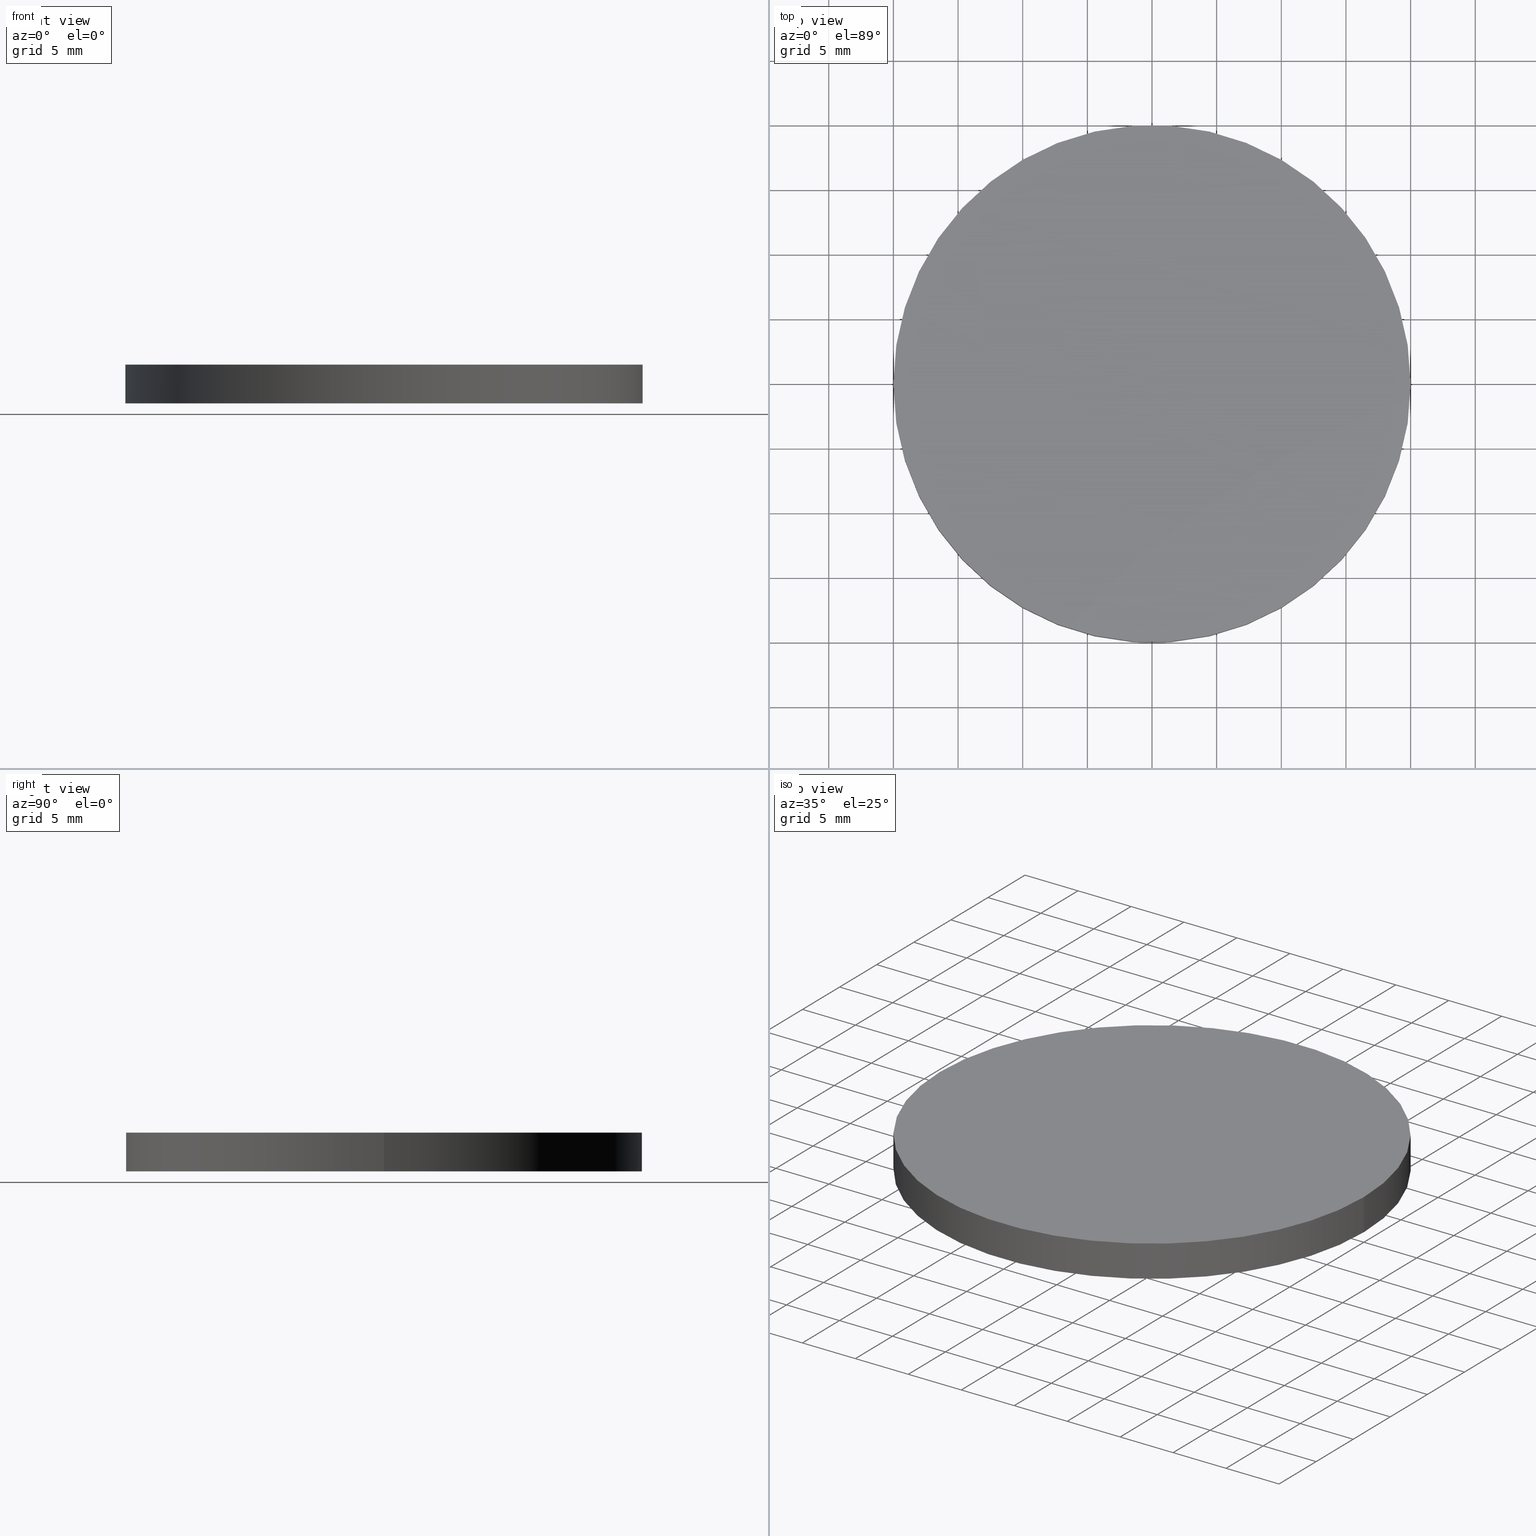
[diagram: canonical four-view strip — front | top / right | iso, engineering-drawing reading convention]
A machine part, canonical four-view strip (front | top / right | iso — engineering-drawing reading convention). The complete STEP part file that produces these views, byte-faithful:
ISO-10303-21;
HEADER;
FILE_DESCRIPTION (( 'STEP AP214' ),
    '1' );
FILE_NAME ('190130.STEP',
    '2019-07-17T06:52:16',
    ( 'user' ),
    ( '΢���й�' ),
    'SwSTEP 2.0',
    'SolidWorks 2016',
    '' );
FILE_SCHEMA (( 'AUTOMOTIVE_DESIGN' ));
ENDSEC;

DATA;
#1 = APPLICATION_PROTOCOL_DEFINITION ( 'draft international standard', 'automotive_design', 1998, #81 ) ;
#2 = COLOUR_RGB ( '',1.000000000000000000, 1.000000000000000000, 1.000000000000000000 ) ;
#3 = UNCERTAINTY_MEASURE_WITH_UNIT (LENGTH_MEASURE( 1.000000000000000100E-005 ), #75, 'distance_accuracy_value', 'NONE');
#4 = ORIENTED_EDGE ( 'NONE', *, *, #43, .F. ) ;
#5 =( NAMED_UNIT ( * ) SI_UNIT ( $, .STERADIAN. ) SOLID_ANGLE_UNIT ( ) );
#6 = APPLICATION_PROTOCOL_DEFINITION ( 'draft international standard', 'automotive_design', 1998, #134 ) ;
#7 = CYLINDRICAL_SURFACE ( 'NONE', #116, 20.00000000000000000 ) ;
#8 = SURFACE_STYLE_USAGE ( .BOTH. , #88 ) ;
#9 = FACE_OUTER_BOUND ( 'NONE', #112, .T. ) ;
#10 = PRODUCT_CONTEXT ( 'NONE', #134, 'mechanical' ) ;
#11 = LINE ( 'NONE', #28, #67 ) ;
#12 = VERTEX_POINT ( 'NONE', #89 ) ;
#13 = AXIS2_PLACEMENT_3D ( 'NONE', #63, #127, #54 ) ;
#14 = FILL_AREA_STYLE_COLOUR ( '', #2 ) ;
#15 = FACE_OUTER_BOUND ( 'NONE', #76, .T. ) ;
#16 = DIRECTION ( 'NONE',  ( -1.000000000000000000, 0.0000000000000000000, 0.0000000000000000000 ) ) ;
#17 = FILL_AREA_STYLE ('',( #14 ) ) ;
#18 = CARTESIAN_POINT ( 'NONE',  ( 20.00000000000000000, 2.449293598294706500E-015, 3.000000000000000000 ) ) ;
#19 = SURFACE_SIDE_STYLE ('',( #130 ) ) ;
#20 = ORIENTED_EDGE ( 'NONE', *, *, #84, .F. ) ;
#21 = FILL_AREA_STYLE ('',( #77 ) ) ;
#22 =( NAMED_UNIT ( * ) PLANE_ANGLE_UNIT ( ) SI_UNIT ( $, .RADIAN. ) );
#23 = AXIS2_PLACEMENT_3D ( 'NONE', #49, #61, #41 ) ;
#24 = VERTEX_POINT ( 'NONE', #18 ) ;
#25 =( LENGTH_UNIT ( ) NAMED_UNIT ( * ) SI_UNIT ( .MILLI., .METRE. ) );
#26 = AXIS2_PLACEMENT_3D ( 'NONE', #72, #51, #124 ) ;
#27 = CARTESIAN_POINT ( 'NONE',  ( 0.0000000000000000000, 0.0000000000000000000, 0.0000000000000000000 ) ) ;
#28 = CARTESIAN_POINT ( 'NONE',  ( 20.00000000000000000, 2.449293598294706500E-015, 3.000000000000000000 ) ) ;
#29 = PRODUCT_DEFINITION_SHAPE ( 'NONE', 'NONE',  #87 ) ;
#30 = SURFACE_STYLE_FILL_AREA ( #21 ) ;
#31 = UNCERTAINTY_MEASURE_WITH_UNIT (LENGTH_MEASURE( 1.000000000000000100E-005 ), #105, 'distance_accuracy_value', 'NONE');
#32 = PLANE ( 'NONE',  #45 ) ;
#33 = ORIENTED_EDGE ( 'NONE', *, *, #37, .T. ) ;
#34 =( NAMED_UNIT ( * ) SI_UNIT ( $, .STERADIAN. ) SOLID_ANGLE_UNIT ( ) );
#35 = AXIS2_PLACEMENT_3D ( 'NONE', #27, #70, #39 ) ;
#36 = AXIS2_PLACEMENT_3D ( 'NONE', #60, #125, #137 ) ;
#37 = EDGE_CURVE ( 'NONE', #12, #24, #82, .T. ) ;
#38 = STYLED_ITEM ( 'NONE', ( #50 ), #129 ) ;
#39 = DIRECTION ( 'NONE',  ( 1.000000000000000000, 0.0000000000000000000, -0.0000000000000000000 ) ) ;
#40 = ORIENTED_EDGE ( 'NONE', *, *, #136, .T. ) ;
#41 = DIRECTION ( 'NONE',  ( -1.000000000000000000, 0.0000000000000000000, 0.0000000000000000000 ) ) ;
#42 = DIRECTION ( 'NONE',  ( 0.0000000000000000000, 0.0000000000000000000, 1.000000000000000000 ) ) ;
#43 = EDGE_CURVE ( 'NONE', #24, #12, #53, .T. ) ;
#44 = ADVANCED_FACE ( 'NONE', ( #94 ), #7, .T. ) ;
#45 = AXIS2_PLACEMENT_3D ( 'NONE', #140, #42, #113 ) ;
#46 = VERTEX_POINT ( 'NONE', #99 ) ;
#47 = EDGE_LOOP ( 'NONE', ( #4, #85, #56, #59 ) ) ;
#48 = ADVANCED_FACE ( 'NONE', ( #9 ), #96, .F. ) ;
#49 = CARTESIAN_POINT ( 'NONE',  ( 0.0000000000000000000, 0.0000000000000000000, 3.000000000000000000 ) ) ;
#50 = PRESENTATION_STYLE_ASSIGNMENT (( #8 ) ) ;
#51 = DIRECTION ( 'NONE',  ( 0.0000000000000000000, 0.0000000000000000000, 1.000000000000000000 ) ) ;
#52 = PRESENTATION_LAYER_ASSIGNMENT (  '', '', ( #38 ) ) ;
#53 = CIRCLE ( 'NONE', #26, 20.00000000000000000 ) ;
#54 = DIRECTION ( 'NONE',  ( 1.000000000000000000, 0.0000000000000000000, 0.0000000000000000000 ) ) ;
#55 = PRESENTATION_STYLE_ASSIGNMENT (( #135 ) ) ;
#56 = ORIENTED_EDGE ( 'NONE', *, *, #118, .T. ) ;
#57 = MECHANICAL_DESIGN_GEOMETRIC_PRESENTATION_REPRESENTATION (  '', ( #38 ), #68 ) ;
#58 = CARTESIAN_POINT ( 'NONE',  ( 0.0000000000000000000, 0.0000000000000000000, 3.000000000000000000 ) ) ;
#59 = ORIENTED_EDGE ( 'NONE', *, *, #136, .F. ) ;
#60 = CARTESIAN_POINT ( 'NONE',  ( 0.0000000000000000000, 0.0000000000000000000, 3.000000000000000000 ) ) ;
#61 = DIRECTION ( 'NONE',  ( -0.0000000000000000000, -0.0000000000000000000, -1.000000000000000000 ) ) ;
#62 =( NAMED_UNIT ( * ) SI_UNIT ( $, .STERADIAN. ) SOLID_ANGLE_UNIT ( ) );
#63 = CARTESIAN_POINT ( 'NONE',  ( 0.0000000000000000000, 0.0000000000000000000, 0.0000000000000000000 ) ) ;
#64 = ORIENTED_EDGE ( 'NONE', *, *, #37, .F. ) ;
#65 = DIRECTION ( 'NONE',  ( 1.000000000000000000, 0.0000000000000000000, 0.0000000000000000000 ) ) ;
#66 = PRODUCT ( '190130', '190130', '', ( #10 ) ) ;
#67 = VECTOR ( 'NONE', #104, 1000.000000000000000 ) ;
#68 =( GEOMETRIC_REPRESENTATION_CONTEXT ( 3 ) GLOBAL_UNCERTAINTY_ASSIGNED_CONTEXT ( ( #3 ) ) GLOBAL_UNIT_ASSIGNED_CONTEXT ( ( #75, #138, #62 ) ) REPRESENTATION_CONTEXT ( 'NONE', 'WORKASPACE' ) );
#69 =( NAMED_UNIT ( * ) PLANE_ANGLE_UNIT ( ) SI_UNIT ( $, .RADIAN. ) );
#70 = DIRECTION ( 'NONE',  ( 0.0000000000000000000, 0.0000000000000000000, 1.000000000000000000 ) ) ;
#71 = LINE ( 'NONE', #119, #80 ) ;
#72 = CARTESIAN_POINT ( 'NONE',  ( 0.0000000000000000000, 0.0000000000000000000, 3.000000000000000000 ) ) ;
#73 =( GEOMETRIC_REPRESENTATION_CONTEXT ( 3 ) GLOBAL_UNCERTAINTY_ASSIGNED_CONTEXT ( ( #31 ) ) GLOBAL_UNIT_ASSIGNED_CONTEXT ( ( #105, #69, #5 ) ) REPRESENTATION_CONTEXT ( 'NONE', 'WORKASPACE' ) );
#74 = DIRECTION ( 'NONE',  ( -0.0000000000000000000, -0.0000000000000000000, -1.000000000000000000 ) ) ;
#75 =( LENGTH_UNIT ( ) NAMED_UNIT ( * ) SI_UNIT ( .MILLI., .METRE. ) );
#76 = EDGE_LOOP ( 'NONE', ( #133, #64, #40, #122 ) ) ;
#77 = FILL_AREA_STYLE_COLOUR ( '', #132 ) ;
#78 = SHAPE_DEFINITION_REPRESENTATION ( #29, #79 ) ;
#79 = ADVANCED_BREP_SHAPE_REPRESENTATION ( '190130', ( #129, #83 ), #73 ) ;
#80 = VECTOR ( 'NONE', #114, 1000.000000000000000 ) ;
#81 = APPLICATION_CONTEXT ( 'automotive_design' ) ;
#82 = CIRCLE ( 'NONE', #36, 20.00000000000000000 ) ;
#83 = AXIS2_PLACEMENT_3D ( 'NONE', #131, #90, #65 ) ;
#84 = EDGE_CURVE ( 'NONE', #107, #46, #98, .T. ) ;
#85 = ORIENTED_EDGE ( 'NONE', *, *, #108, .T. ) ;
#86 = CARTESIAN_POINT ( 'NONE',  ( 0.0000000000000000000, 0.0000000000000000000, 0.0000000000000000000 ) ) ;
#87 = PRODUCT_DEFINITION ( 'δ֪', '', #97, #139 ) ;
#88 = SURFACE_SIDE_STYLE ('',( #30 ) ) ;
#89 = CARTESIAN_POINT ( 'NONE',  ( -20.00000000000000000, 0.0000000000000000000, 3.000000000000000000 ) ) ;
#90 = DIRECTION ( 'NONE',  ( 0.0000000000000000000, 0.0000000000000000000, 1.000000000000000000 ) ) ;
#91 = ORIENTED_EDGE ( 'NONE', *, *, #118, .F. ) ;
#92 = STYLED_ITEM ( 'NONE', ( #55 ), #79 ) ;
#93 = CIRCLE ( 'NONE', #13, 20.00000000000000000 ) ;
#94 = FACE_OUTER_BOUND ( 'NONE', #47, .T. ) ;
#95 = CYLINDRICAL_SURFACE ( 'NONE', #23, 20.00000000000000000 ) ;
#96 = PLANE ( 'NONE',  #35 ) ;
#97 = PRODUCT_DEFINITION_FORMATION_WITH_SPECIFIED_SOURCE ( '�κ�', '', #66, .NOT_KNOWN. ) ;
#98 = CIRCLE ( 'NONE', #111, 20.00000000000000000 ) ;
#99 = CARTESIAN_POINT ( 'NONE',  ( 20.00000000000000000, 2.449293598294706500E-015, 0.0000000000000000000 ) ) ;
#100 = DIRECTION ( 'NONE',  ( 1.000000000000000000, 0.0000000000000000000, 0.0000000000000000000 ) ) ;
#101 = ADVANCED_FACE ( 'NONE', ( #15 ), #95, .T. ) ;
#102 = PRESENTATION_LAYER_ASSIGNMENT (  '', '', ( #92 ) ) ;
#103 = UNCERTAINTY_MEASURE_WITH_UNIT (LENGTH_MEASURE( 1.000000000000000100E-005 ), #25, 'distance_accuracy_value', 'NONE');
#104 = DIRECTION ( 'NONE',  ( -0.0000000000000000000, -0.0000000000000000000, -1.000000000000000000 ) ) ;
#105 =( LENGTH_UNIT ( ) NAMED_UNIT ( * ) SI_UNIT ( .MILLI., .METRE. ) );
#106 = PRODUCT_RELATED_PRODUCT_CATEGORY ( 'part', '', ( #66 ) ) ;
#107 = VERTEX_POINT ( 'NONE', #123 ) ;
#108 = EDGE_CURVE ( 'NONE', #24, #46, #11, .T. ) ;
#109 = MECHANICAL_DESIGN_GEOMETRIC_PRESENTATION_REPRESENTATION (  '', ( #92 ), #115 ) ;
#110 = ORIENTED_EDGE ( 'NONE', *, *, #43, .T. ) ;
#111 = AXIS2_PLACEMENT_3D ( 'NONE', #86, #120, #100 ) ;
#112 = EDGE_LOOP ( 'NONE', ( #20, #91 ) ) ;
#113 = DIRECTION ( 'NONE',  ( 1.000000000000000000, 0.0000000000000000000, -0.0000000000000000000 ) ) ;
#114 = DIRECTION ( 'NONE',  ( -0.0000000000000000000, -0.0000000000000000000, -1.000000000000000000 ) ) ;
#115 =( GEOMETRIC_REPRESENTATION_CONTEXT ( 3 ) GLOBAL_UNCERTAINTY_ASSIGNED_CONTEXT ( ( #103 ) ) GLOBAL_UNIT_ASSIGNED_CONTEXT ( ( #25, #22, #34 ) ) REPRESENTATION_CONTEXT ( 'NONE', 'WORKASPACE' ) );
#116 = AXIS2_PLACEMENT_3D ( 'NONE', #58, #74, #16 ) ;
#117 = FACE_OUTER_BOUND ( 'NONE', #126, .T. ) ;
#118 = EDGE_CURVE ( 'NONE', #46, #107, #93, .T. ) ;
#119 = CARTESIAN_POINT ( 'NONE',  ( -20.00000000000000000, 0.0000000000000000000, 3.000000000000000000 ) ) ;
#120 = DIRECTION ( 'NONE',  ( 0.0000000000000000000, 0.0000000000000000000, 1.000000000000000000 ) ) ;
#121 = CLOSED_SHELL ( 'NONE', ( #44, #101, #128, #48 ) ) ;
#122 = ORIENTED_EDGE ( 'NONE', *, *, #84, .T. ) ;
#123 = CARTESIAN_POINT ( 'NONE',  ( -20.00000000000000000, 0.0000000000000000000, 0.0000000000000000000 ) ) ;
#124 = DIRECTION ( 'NONE',  ( 1.000000000000000000, 0.0000000000000000000, 0.0000000000000000000 ) ) ;
#125 = DIRECTION ( 'NONE',  ( 0.0000000000000000000, 0.0000000000000000000, 1.000000000000000000 ) ) ;
#126 = EDGE_LOOP ( 'NONE', ( #33, #110 ) ) ;
#127 = DIRECTION ( 'NONE',  ( 0.0000000000000000000, 0.0000000000000000000, 1.000000000000000000 ) ) ;
#128 = ADVANCED_FACE ( 'NONE', ( #117 ), #32, .T. ) ;
#129 = MANIFOLD_SOLID_BREP ( '͹̨-����1', #121 ) ;
#130 = SURFACE_STYLE_FILL_AREA ( #17 ) ;
#131 = CARTESIAN_POINT ( 'NONE',  ( 0.0000000000000000000, 0.0000000000000000000, 0.0000000000000000000 ) ) ;
#132 = COLOUR_RGB ( '',1.000000000000000000, 1.000000000000000000, 1.000000000000000000 ) ;
#133 = ORIENTED_EDGE ( 'NONE', *, *, #108, .F. ) ;
#134 = APPLICATION_CONTEXT ( 'automotive_design' ) ;
#135 = SURFACE_STYLE_USAGE ( .BOTH. , #19 ) ;
#136 = EDGE_CURVE ( 'NONE', #12, #107, #71, .T. ) ;
#137 = DIRECTION ( 'NONE',  ( 1.000000000000000000, 0.0000000000000000000, 0.0000000000000000000 ) ) ;
#138 =( NAMED_UNIT ( * ) PLANE_ANGLE_UNIT ( ) SI_UNIT ( $, .RADIAN. ) );
#139 = PRODUCT_DEFINITION_CONTEXT ( 'detailed design', #81, 'design' ) ;
#140 = CARTESIAN_POINT ( 'NONE',  ( 0.0000000000000000000, 0.0000000000000000000, 3.000000000000000000 ) ) ;
ENDSEC;
END-ISO-10303-21;
